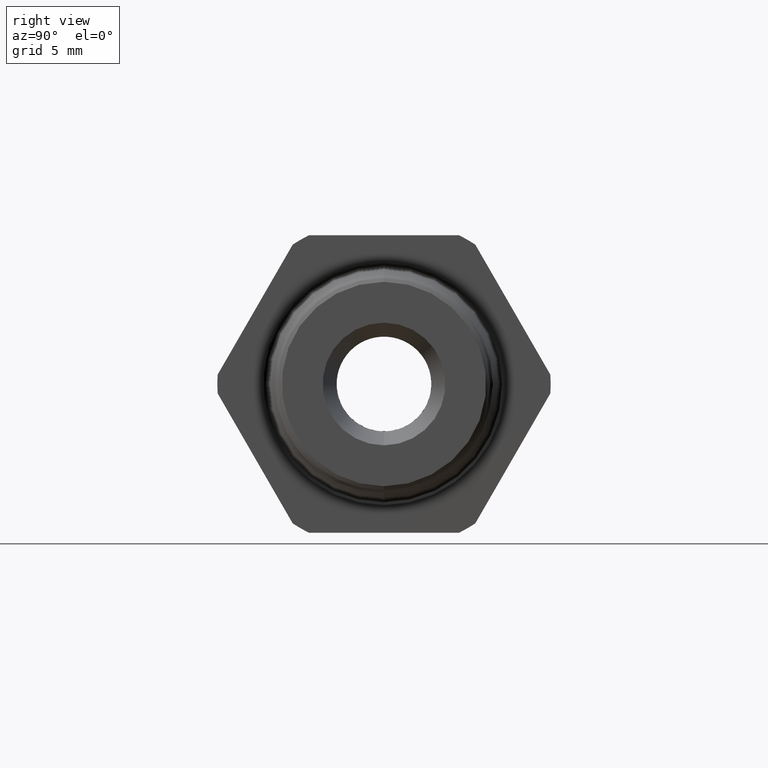
[diagram: clean part render]
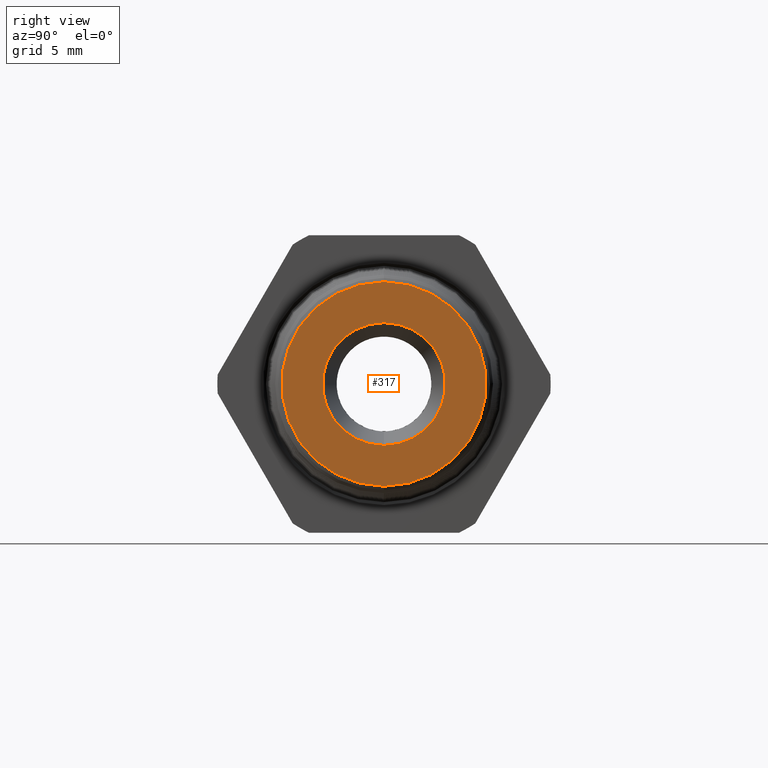
[diagram: same view with one face highlighted and labeled with its STEP entity id]
A machine part, right view. The second image highlights one B-rep face of the part: STEP entity #317.
In plain terms, the highlighted planar face has unit normal (-1, 0, -0).
Its self-contained STEP definition (entity closure, byte-faithful):
#43 = VERTEX_POINT ( 'NONE', #2009 ) ;
#44 = VERTEX_POINT ( 'NONE', #2000 ) ;
#63 = EDGE_CURVE ( 'NONE', #44, #43, #2039, .T. ) ;
#256 = EDGE_CURVE ( 'NONE', #43, #44, #2422, .T. ) ;
#257 = ORIENTED_EDGE ( 'NONE', *, *, #612, .F. ) ;
#267 = ORIENTED_EDGE ( 'NONE', *, *, #268, .F. ) ;
#268 = EDGE_CURVE ( 'NONE', #589, #582, #2451, .T. ) ;
#317 = ADVANCED_FACE ( 'NONE', ( #2518, #2520 ), #2519, .F. ) ;
#323 = EDGE_LOOP ( 'NONE', ( #257, #267 ) ) ;
#342 = ORIENTED_EDGE ( 'NONE', *, *, #63, .T. ) ;
#343 = ORIENTED_EDGE ( 'NONE', *, *, #256, .T. ) ;
#361 = EDGE_LOOP ( 'NONE', ( #342, #343 ) ) ;
#582 = VERTEX_POINT ( 'NONE', #3139 ) ;
#589 = VERTEX_POINT ( 'NONE', #3068 ) ;
#612 = EDGE_CURVE ( 'NONE', #582, #589, #3216, .T. ) ;
#2000 = CARTESIAN_POINT ( 'NONE',  ( 0.5899999999999999700, 0.0000000000000000000, -0.1547025146824250500 ) ) ;
#2009 = CARTESIAN_POINT ( 'NONE',  ( 0.5899999999999999700, 1.894496824323973100E-017, 0.1547025146824250500 ) ) ;
#2039 = CIRCLE ( 'NONE', #2058, 0.1547025146824250500 ) ;
#2055 = DIRECTION ( 'NONE',  ( 0.0000000000000000000, 0.0000000000000000000, 1.000000000000000000 ) ) ;
#2056 = DIRECTION ( 'NONE',  ( -1.000000000000000000, -0.0000000000000000000, -0.0000000000000000000 ) ) ;
#2057 = CARTESIAN_POINT ( 'NONE',  ( 0.5899999999999999700, 0.0000000000000000000, 0.0000000000000000000 ) ) ;
#2058 = AXIS2_PLACEMENT_3D ( 'NONE', #2057, #2056, #2055 ) ;
#2418 = DIRECTION ( 'NONE',  ( 0.0000000000000000000, 0.0000000000000000000, 1.000000000000000000 ) ) ;
#2419 = DIRECTION ( 'NONE',  ( -1.000000000000000000, -0.0000000000000000000, -0.0000000000000000000 ) ) ;
#2420 = CARTESIAN_POINT ( 'NONE',  ( 0.5899999999999999700, 0.0000000000000000000, 0.0000000000000000000 ) ) ;
#2421 = AXIS2_PLACEMENT_3D ( 'NONE', #2420, #2419, #2418 ) ;
#2422 = CIRCLE ( 'NONE', #2421, 0.1547025146824250500 ) ;
#2447 = DIRECTION ( 'NONE',  ( 0.0000000000000000000, 0.0000000000000000000, 1.000000000000000000 ) ) ;
#2448 = DIRECTION ( 'NONE',  ( -1.000000000000000000, -0.0000000000000000000, -0.0000000000000000000 ) ) ;
#2449 = CARTESIAN_POINT ( 'NONE',  ( 0.5899999999999999700, 0.0000000000000000000, 0.0000000000000000000 ) ) ;
#2450 = AXIS2_PLACEMENT_3D ( 'NONE', #2449, #2448, #2447 ) ;
#2451 = CIRCLE ( 'NONE', #2450, 0.2576609802594270200 ) ;
#2518 = FACE_BOUND ( 'NONE', #361, .T. ) ;
#2519 = PLANE ( 'NONE',  #2599 ) ;
#2520 = FACE_OUTER_BOUND ( 'NONE', #323, .T. ) ;
#2556 = CARTESIAN_POINT ( 'NONE',  ( 0.5899999999999999700, 0.2742400436839778100, 0.0000000000000000000 ) ) ;
#2599 = AXIS2_PLACEMENT_3D ( 'NONE', #2556, #2600, #2633 ) ;
#2600 = DIRECTION ( 'NONE',  ( -1.000000000000000000, 0.0000000000000000000, -0.0000000000000000000 ) ) ;
#2633 = DIRECTION ( 'NONE',  ( -0.0000000000000000000, 0.0000000000000000000, 1.000000000000000000 ) ) ;
#3068 = CARTESIAN_POINT ( 'NONE',  ( 0.5899999999999999700, 3.214427141929195200E-017, -0.2576609802594270200 ) ) ;
#3139 = CARTESIAN_POINT ( 'NONE',  ( 0.5899999999999999700, 0.0000000000000000000, 0.2576609802594270200 ) ) ;
#3203 = DIRECTION ( 'NONE',  ( 0.0000000000000000000, 0.0000000000000000000, 1.000000000000000000 ) ) ;
#3204 = DIRECTION ( 'NONE',  ( -1.000000000000000000, -0.0000000000000000000, -0.0000000000000000000 ) ) ;
#3205 = CARTESIAN_POINT ( 'NONE',  ( 0.5899999999999999700, 0.0000000000000000000, 0.0000000000000000000 ) ) ;
#3215 = AXIS2_PLACEMENT_3D ( 'NONE', #3205, #3204, #3203 ) ;
#3216 = CIRCLE ( 'NONE', #3215, 0.2576609802594270200 ) ;